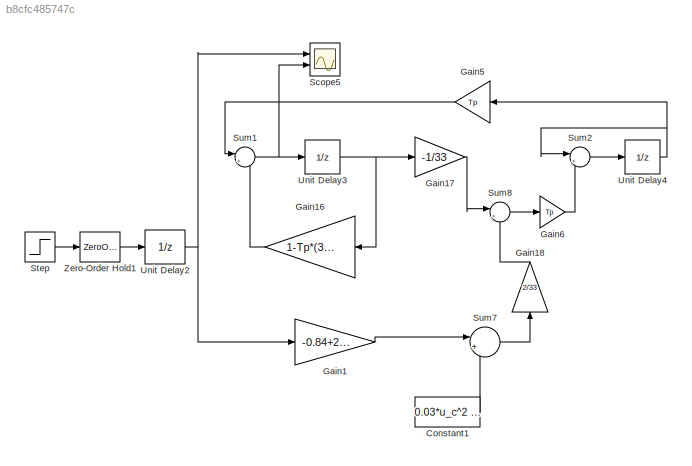
MODEL slx_b8cfc485747c
KIND model
CONFIG AbsTol = auto
CONFIG EnableMultiTasking = off
CONFIG FixedStep = auto
CONFIG MaxStep = auto
CONFIG MinStep = auto
CONFIG RelTol = 1e-3
CONFIG SampleTimeConstraint = Unconstrained
CONFIG Solver = VariableStepAuto
CONFIG SolverName = VariableStepAuto
CONFIG StartTime = 0.0
CONFIG StopTime = 10.0
BLOCK [Constant] Constant1
  Value = 0.03*u_c^2 - 2*(-1.95)*u_c^3 - 3*(-0.9)*u_c^4
BLOCK [Gain] Gain1
  Gain = -0.84+2*u_c*(-0.03)+3*(u_c^2)*(-1.95)+4*(u_c^3)*(-0.9)
  OutDataTypeStr = Inherit: Inherit via internal rule
  ParamDataTypeStr = Inherit: Inherit via internal rule
  SaturateOnIntegerOverflow = off
BLOCK [Gain] Gain16
  Gain = 1-Tp*(3+11)/33
  OutDataTypeStr = Inherit: Inherit via internal rule
  ParamDataTypeStr = double
  SaturateOnIntegerOverflow = off
BLOCK [Gain] Gain17
  Gain = -1/33
  OutDataTypeStr = Inherit: Inherit via internal rule
  ParamDataTypeStr = Inherit: Inherit via internal rule
  SaturateOnIntegerOverflow = off
BLOCK [Gain] Gain18
  Gain = 2/33
  OutDataTypeStr = Inherit: Inherit via internal rule
  ParamDataTypeStr = Inherit: Inherit via internal rule
  SaturateOnIntegerOverflow = off
BLOCK [Gain] Gain5
  Gain = Tp
  OutDataTypeStr = Inherit: Inherit via internal rule
  ParamDataTypeStr = double
  SaturateOnIntegerOverflow = off
BLOCK [Gain] Gain6
  Gain = Tp
  OutDataTypeStr = Inherit: Inherit via internal rule
  ParamDataTypeStr = Inherit: Inherit via internal rule
  SaturateOnIntegerOverflow = off
BLOCK [Scope] Scope5
  NumInputPorts = 2
  Ports = [2]
  ScopeSpecificationString = Simulink.scopes.TimeScopeBlockCfg('CurrentConfiguration', extmgr.ConfigurationSet(extmgr.Configuration('Core','General UI',true),extmgr.Configuration('Core','Source UI',true),extmgr.Configuration('Sources','WiredSimulink',true),extmgr.Configuration('Visuals','Time Domain',true,'SerializedDisplays',{struct('MinYLimReal','-1.73436','MaxYLimReal','1.30382','YLabelReal','','MinYLimMag','0.00000','MaxY...<+1437ch>
BLOCK [Step] Step
  SampleTime = 0
BLOCK [Sum] Sum1
  IconShape = round
  InputSameDT = off
  Inputs = |++
  OutDataTypeStr = Inherit: Inherit via internal rule
  Ports = [2, 1]
  SaturateOnIntegerOverflow = off
BLOCK [Sum] Sum2
  IconShape = round
  InputSameDT = off
  Inputs = |++
  OutDataTypeStr = Inherit: Inherit via internal rule
  Ports = [2, 1]
  SaturateOnIntegerOverflow = off
BLOCK [Sum] Sum7
  IconShape = round
  InputSameDT = off
  Inputs = |++
  OutDataTypeStr = Inherit: Inherit via internal rule
  Ports = [2, 1]
  SaturateOnIntegerOverflow = off
BLOCK [Sum] Sum8
  IconShape = round
  InputSameDT = off
  Inputs = |++
  OutDataTypeStr = Inherit: Inherit via internal rule
  Ports = [2, 1]
  SaturateOnIntegerOverflow = off
BLOCK [UnitDelay] Unit Delay2
  InputProcessing = Elements as channels (sample based)
  SampleTime = Tp
BLOCK [UnitDelay] Unit Delay3
  InputProcessing = Elements as channels (sample based)
  SampleTime = Tp
BLOCK [UnitDelay] Unit Delay4
  InputProcessing = Elements as channels (sample based)
  SampleTime = Tp
BLOCK [ZeroOrderHold] Zero-Order Hold1
  SampleTime = Tp
LINE Constant1:1 -> Sum7:2
LINE Gain16:1 -> Sum1:2
LINE Gain17:1 -> Sum8:1
LINE Gain18:1 -> Sum8:2
LINE Gain1:1 -> Sum7:1
LINE Gain5:1 -> Sum1:1
LINE Gain6:1 -> Sum2:2
LINE Step:1 -> Zero-Order Hold1:1
NET Sum1:1 -> Scope5:2, Unit Delay3:1
LINE Sum2:1 -> Unit Delay4:1
LINE Sum7:1 -> Gain18:1
LINE Sum8:1 -> Gain6:1
NET Unit Delay2:1 -> Gain1:1, Scope5:1
NET Unit Delay3:1 -> Gain16:1, Gain17:1
NET Unit Delay4:1 -> Gain5:1, Sum2:1
LINE Zero-Order Hold1:1 -> Unit Delay2:1
note: NET lines group one-source signal fan-out (src -> all destinations, sorted); 1:1 wires keep LINE
